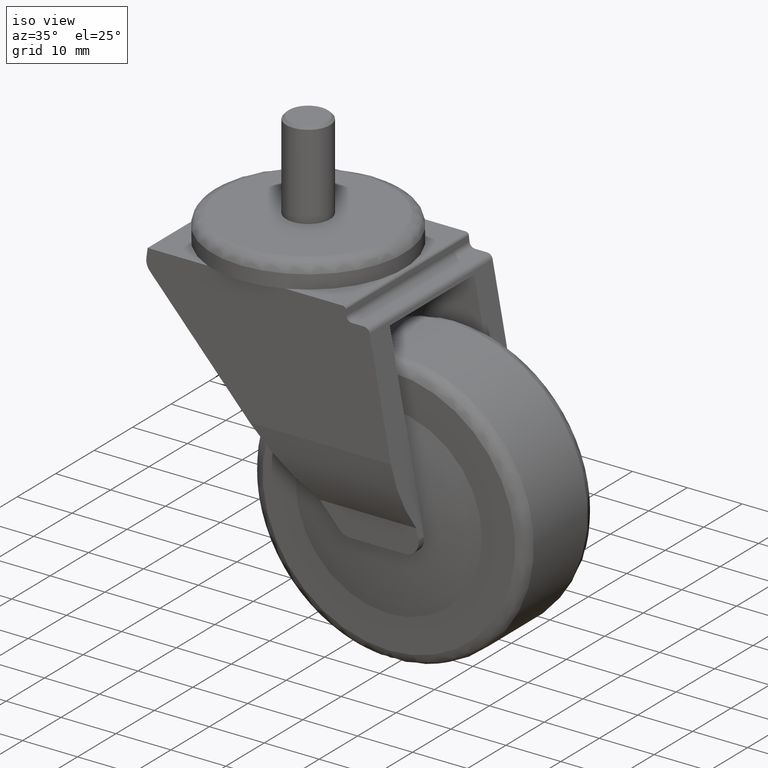
[diagram: clean part render]
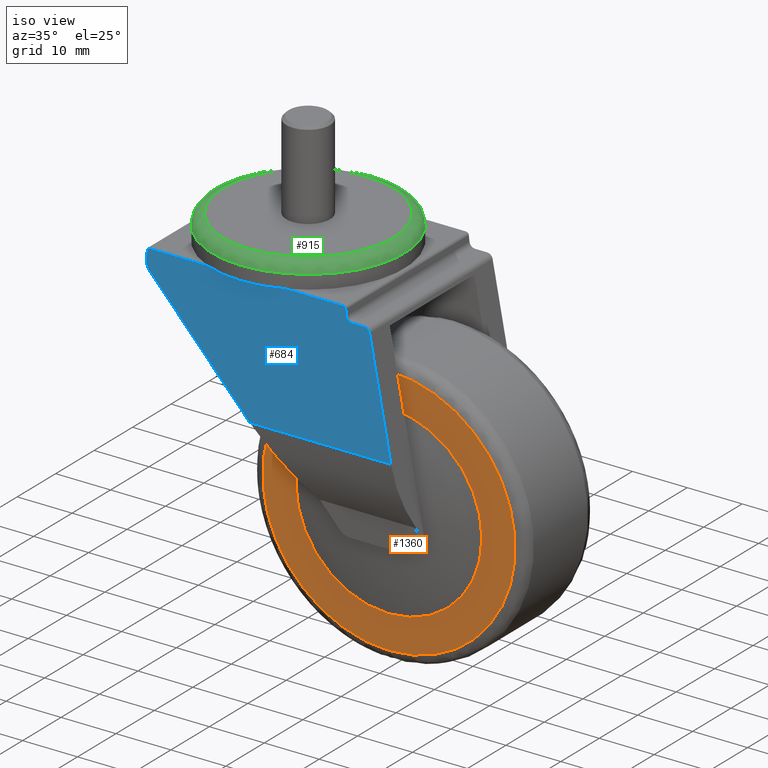
[diagram: same view with three faces highlighted in distinct colors, each labeled with its STEP entity id]
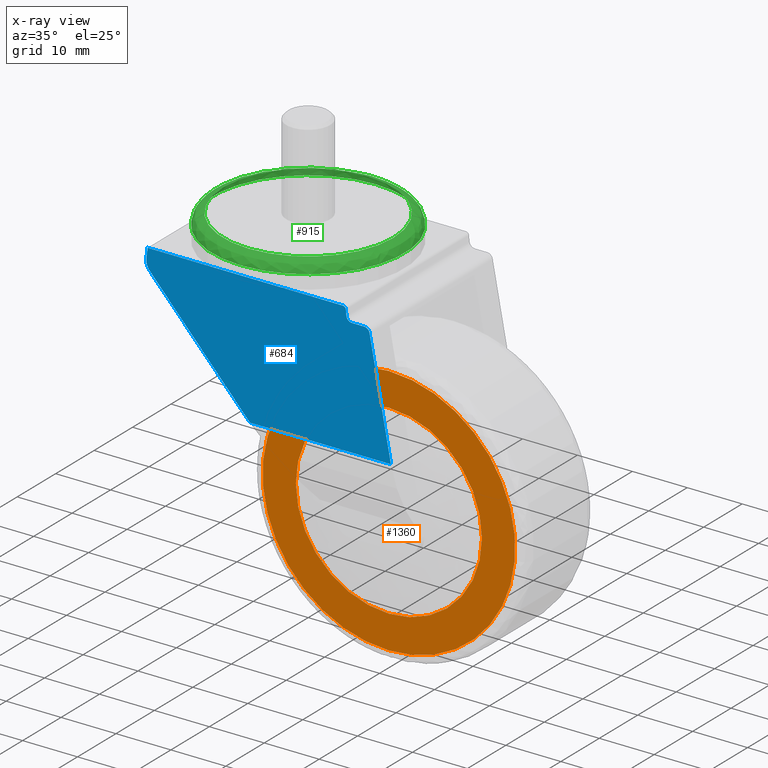
[diagram: x-ray of the same camera — body ghosted, the three highlighted faces saturated]
A machine part, iso view with three faces highlighted in distinct colors.
The next image is the same camera in x-ray (body ghosted, the three faces saturated) — at least one of them is partly hidden behind the body in this view.
Their STEP definitions:

[orange] entity #1360 — the highlighted planar face has unit normal (0, 1, 0).
#1300=CARTESIAN_POINT('',(21.0,-8.999999999963622,-16.999949034416261));
#1301=VERTEX_POINT('',#1300);
#1309=CARTESIAN_POINT('',(21.0,-8.999999999963624,-62.991799420333734));
#1310=VERTEX_POINT('',#1309);
#1311=CARTESIAN_POINT('',(21.0,-8.999999999963622,-39.995874227374998));
#1312=DIRECTION('',(0.0,1.0,-6.123234E-017));
#1313=DIRECTION('',(0.0,6.123234E-017,1.0));
#1314=AXIS2_PLACEMENT_3D('',#1311,#1312,#1313);
#1315=CIRCLE('',#1314,22.995925192958737);
#1316=EDGE_CURVE('',#1301,#1310,#1315,.T.);
#1318=CARTESIAN_POINT('',(21.0,-8.999999999963622,-39.995874227374998));
#1319=DIRECTION('',(0.0,1.0,-6.123234E-017));
#1320=DIRECTION('',(0.0,6.123234E-017,1.0));
#1321=AXIS2_PLACEMENT_3D('',#1318,#1319,#1320);
#1322=CIRCLE('',#1321,22.995925192958737);
#1323=EDGE_CURVE('',#1310,#1301,#1322,.T.);
#1331=CARTESIAN_POINT('',(-24.991850385917473,-8.999999999963620,5.995976158542477));
#1332=DIRECTION('',(0.0,1.0,0.0));
#1333=DIRECTION('',(1.0,0.0,0.0));
#1334=AXIS2_PLACEMENT_3D('',#1331,#1332,#1333);
#1335=PLANE('',#1334);
#1336=ORIENTED_EDGE('',*,*,#1323,.F.);
#1337=ORIENTED_EDGE('',*,*,#1316,.F.);
#1338=EDGE_LOOP('',(#1336,#1337));
#1339=FACE_OUTER_BOUND('',#1338,.T.);
#1340=CARTESIAN_POINT('',(21.0,-8.999999999963622,-23.052448147531777));
#1341=VERTEX_POINT('',#1340);
#1342=CARTESIAN_POINT('',(21.0,-8.999999999963624,-56.939300307218218));
#1343=VERTEX_POINT('',#1342);
#1344=CARTESIAN_POINT('',(21.0,-8.999999999963622,-39.995874227374998));
#1345=DIRECTION('',(0.0,1.0,-6.123234E-017));
#1346=DIRECTION('',(0.0,6.123234E-017,1.0));
#1347=AXIS2_PLACEMENT_3D('',#1344,#1345,#1346);
#1348=CIRCLE('',#1347,16.943426079843221);
#1349=EDGE_CURVE('',#1341,#1343,#1348,.T.);
#1350=ORIENTED_EDGE('',*,*,#1349,.T.);
#1351=CARTESIAN_POINT('',(21.0,-8.999999999963622,-39.995874227374998));
#1352=DIRECTION('',(0.0,1.0,-6.123234E-017));
#1353=DIRECTION('',(0.0,6.123234E-017,1.0));
#1354=AXIS2_PLACEMENT_3D('',#1351,#1352,#1353);
#1355=CIRCLE('',#1354,16.943426079843221);
#1356=EDGE_CURVE('',#1343,#1341,#1355,.T.);
#1357=ORIENTED_EDGE('',*,*,#1356,.T.);
#1358=EDGE_LOOP('',(#1350,#1357));
#1359=FACE_BOUND('',#1358,.T.);
#1360=ADVANCED_FACE('',(#1339,#1359),#1335,.F.);

[blue] entity #684 — the highlighted planar face has unit normal (0, -1, 0).
#93=CARTESIAN_POINT('',(22.375318074993629,-15.999999999936335,-7.726464443858048));
#94=VERTEX_POINT('',#93);
#101=CARTESIAN_POINT('',(26.264550965767153,-15.999999999936337,-28.277068329185749));
#102=VERTEX_POINT('',#101);
#103=CARTESIAN_POINT('',(26.264550965767153,-15.999999999936337,-28.277068329185749));
#104=DIRECTION('',(-0.185950789084049,8.493062E-017,0.982559058804619));
#105=VECTOR('',#104,20.915387936405114);
#106=LINE('',#103,#105);
#107=EDGE_CURVE('',#102,#94,#106,.T.);
#188=CARTESIAN_POINT('',(21.392759818221748,-15.999999999936335,-6.912415897413893));
#189=VERTEX_POINT('',#188);
#196=CARTESIAN_POINT('',(21.392759818221752,-15.999999999936335,-7.912415081144672));
#197=DIRECTION('',(1.540744E-033,-1.0,6.123234E-017));
#198=DIRECTION('',(0.982559058806723,1.138620E-017,0.185950789072931));
#199=AXIS2_PLACEMENT_3D('',#196,#197,#198);
#200=CIRCLE('',#199,0.999999183728617);
#201=EDGE_CURVE('',#94,#189,#200,.T.);
#220=CARTESIAN_POINT('',(19.161870972600809,-15.999999999936335,-6.912415897424352));
#221=VERTEX_POINT('',#220);
#228=CARTESIAN_POINT('',(21.392759818221748,-15.999999999936335,-6.912415897413893));
#229=DIRECTION('',(-1.0,0.0,-5.299875E-012));
#230=VECTOR('',#229,2.230888845620939);
#231=LINE('',#228,#230);
#232=EDGE_CURVE('',#189,#221,#231,.T.);
#252=CARTESIAN_POINT('',(18.167907019151244,-15.999999999936335,-6.022073385073553));
#253=VERTEX_POINT('',#252);
#260=CARTESIAN_POINT('',(19.161870972600813,-15.999999999936335,-5.912422015659103));
#261=DIRECTION('',(0.0,1.0,-6.123234E-017));
#262=DIRECTION('',(-0.993970034789751,-6.714251E-018,-0.109652040291374));
#263=AXIS2_PLACEMENT_3D('',#260,#261,#262);
#264=CIRCLE('',#263,0.999993881765253);
#265=EDGE_CURVE('',#221,#253,#264,.T.);
#284=CARTESIAN_POINT('',(18.049105926018456,-15.999999999936335,-4.945169331482474));
#285=VERTEX_POINT('',#284);
#292=CARTESIAN_POINT('',(18.167907019151244,-15.999999999936335,-6.022073385073553));
#293=DIRECTION('',(-0.109652040291323,0.0,0.993970034789757));
#294=VECTOR('',#293,1.083437141864005);
#295=LINE('',#292,#294);
#296=EDGE_CURVE('',#253,#285,#295,.T.);
#316=CARTESIAN_POINT('',(17.499995637430402,-15.999999999936335,-4.499994252981195));
#317=VERTEX_POINT('',#316);
#324=CARTESIAN_POINT('',(17.499995637430402,-15.999999999936335,-5.061237439857449));
#325=DIRECTION('',(0.0,-1.0,6.123234E-017));
#326=DIRECTION('',(1.0,0.0,0.0));
#327=AXIS2_PLACEMENT_3D('',#324,#325,#326);
#328=CIRCLE('',#327,0.561243186876141);
#329=EDGE_CURVE('',#285,#317,#328,.T.);
#348=CARTESIAN_POINT('',(-18.031204514500132,-15.999999999936335,-4.499994252981195));
#349=VERTEX_POINT('',#348);
#356=CARTESIAN_POINT('',(17.499995637430402,-15.999999999936335,-4.499994252981195));
#357=DIRECTION('',(-1.0,0.0,0.0));
#358=VECTOR('',#357,35.531200151930534);
#359=LINE('',#356,#358);
#360=EDGE_CURVE('',#317,#349,#359,.T.);
#379=CARTESIAN_POINT('',(-18.267747011785104,-15.999999999936335,-6.174286333161944));
#380=VERTEX_POINT('',#379);
#387=CARTESIAN_POINT('',(-18.031204514500132,-15.999999999936335,-4.499994252981195));
#388=DIRECTION('',(-0.139889922562157,0.0,-0.990167061442438));
#389=VECTOR('',#388,1.690918780656774);
#390=LINE('',#387,#389);
#391=EDGE_CURVE('',#349,#380,#390,.T.);
#411=CARTESIAN_POINT('',(-17.643730551919361,-15.999999999936335,-8.203984357693114));
#412=VERTEX_POINT('',#411);
#419=CARTESIAN_POINT('',(-15.792331337932410,-15.999999999936335,-6.524010859871621));
#420=DIRECTION('',(0.0,-1.0,6.123234E-017));
#421=DIRECTION('',(-0.740560277869410,-4.114752E-017,-0.671989936563027));
#422=AXIS2_PLACEMENT_3D('',#419,#420,#421);
#423=CIRCLE('',#422,2.499998000586017);
#424=EDGE_CURVE('',#380,#412,#423,.T.);
#477=CARTESIAN_POINT('',(0.570736018497003,-15.999999999936337,-28.277068329185632));
#478=VERTEX_POINT('',#477);
#486=CARTESIAN_POINT('',(-17.643730551919361,-15.999999999936337,-8.203984357693116));
#487=DIRECTION('',(0.671989936563111,0.0,-0.740560277869335));
#488=VECTOR('',#487,27.105266878807981);
#489=LINE('',#486,#488);
#490=EDGE_CURVE('',#412,#478,#489,.T.);
#661=CARTESIAN_POINT('',(-23.001163089726106,-15.999999999936339,-48.376204442489779));
#662=DIRECTION('',(0.0,-1.0,0.0));
#663=DIRECTION('',(1.0,0.0,0.0));
#664=AXIS2_PLACEMENT_3D('',#661,#662,#663);
#665=PLANE('',#664);
#666=ORIENTED_EDGE('',*,*,#201,.T.);
#667=ORIENTED_EDGE('',*,*,#232,.T.);
#668=ORIENTED_EDGE('',*,*,#265,.T.);
#669=ORIENTED_EDGE('',*,*,#296,.T.);
#670=ORIENTED_EDGE('',*,*,#329,.T.);
#671=ORIENTED_EDGE('',*,*,#360,.T.);
#672=ORIENTED_EDGE('',*,*,#391,.T.);
#673=ORIENTED_EDGE('',*,*,#424,.T.);
#674=ORIENTED_EDGE('',*,*,#490,.T.);
#675=CARTESIAN_POINT('',(26.264550965767157,-15.999999999936337,-28.277068329185681));
#676=DIRECTION('',(-1.0,0.0,0.0));
#677=VECTOR('',#676,25.693814947270155);
#678=LINE('',#675,#677);
#679=EDGE_CURVE('',#102,#478,#678,.T.);
#680=ORIENTED_EDGE('',*,*,#679,.F.);
#681=ORIENTED_EDGE('',*,*,#107,.T.);
#682=EDGE_LOOP('',(#666,#667,#668,#669,#670,#671,#672,#673,#674,#680,#681));
#683=FACE_OUTER_BOUND('',#682,.T.);
#684=ADVANCED_FACE('',(#683),#665,.T.);

[green] entity #915 — the highlighted face is a freeform B-spline surface patch.
#822=CARTESIAN_POINT('',(0.0,17.499995637431496,-1.999999999992991));
#823=VERTEX_POINT('',#822);
#830=CARTESIAN_POINT('',(0.0,-17.499995637431496,-1.999999999992990));
#831=VERTEX_POINT('',#830);
#832=CARTESIAN_POINT('',(0.0,-1.224647E-016,-1.999999999992991));
#833=DIRECTION('',(0.0,4.854407E-017,1.0));
#834=DIRECTION('',(0.0,1.0,-4.854407E-017));
#835=AXIS2_PLACEMENT_3D('',#832,#833,#834);
#836=CIRCLE('',#835,17.499995637431496);
#837=EDGE_CURVE('',#831,#823,#836,.T.);
#839=CARTESIAN_POINT('',(0.0,-1.224647E-016,-1.999999999992991));
#840=DIRECTION('',(0.0,4.854407E-017,1.0));
#841=DIRECTION('',(0.0,1.0,-4.854407E-017));
#842=AXIS2_PLACEMENT_3D('',#839,#840,#841);
#843=CIRCLE('',#842,17.499995637431496);
#844=EDGE_CURVE('',#823,#831,#843,.T.);
#850=CARTESIAN_POINT('',(0.0,17.499995637431496,-1.999999999992991));
#851=CARTESIAN_POINT('',(-17.499995637431496,17.499995637431496,-1.999999999992991));
#852=CARTESIAN_POINT('',(-17.499995637431496,-1.224647E-016,-1.999999999992991));
#853=CARTESIAN_POINT('',(-17.499995637431496,-17.499995637431496,-1.999999999992990));
#854=CARTESIAN_POINT('',(0.0,-17.499995637431496,-1.999999999992990));
#855=CARTESIAN_POINT('',(17.499995637431496,-17.499995637431496,-1.999999999992990));
#856=CARTESIAN_POINT('',(17.499995637431496,-1.224647E-016,-1.999999999992991));
#857=CARTESIAN_POINT('',(17.499995637431496,17.499995637431496,-1.999999999992991));
#858=CARTESIAN_POINT('',(0.0,17.499995637431496,-1.999999999992991));
#859=CARTESIAN_POINT('',(0.0,17.499995637431496,-8.881784E-016));
#860=CARTESIAN_POINT('',(-17.499995637431496,17.499995637431496,-8.881784E-016));
#861=CARTESIAN_POINT('',(-17.499995637431496,0.0,0.0));
#862=CARTESIAN_POINT('',(-17.499995637431496,-17.499995637431496,8.881784E-016));
#863=CARTESIAN_POINT('',(0.0,-17.499995637431496,8.881784E-016));
#864=CARTESIAN_POINT('',(17.499995637431496,-17.499995637431496,8.881784E-016));
#865=CARTESIAN_POINT('',(17.499995637431496,0.0,0.0));
#866=CARTESIAN_POINT('',(17.499995637431496,17.499995637431496,-8.881784E-016));
#867=CARTESIAN_POINT('',(0.0,17.499995637431496,-8.881784E-016));
#868=CARTESIAN_POINT('',(0.0,15.499995637438506,-8.881784E-016));
#869=CARTESIAN_POINT('',(-15.499995637438506,15.499995637438506,-8.881784E-016));
#870=CARTESIAN_POINT('',(-15.499995637438506,0.0,0.0));
#871=CARTESIAN_POINT('',(-15.499995637438506,-15.499995637438506,8.881784E-016));
#872=CARTESIAN_POINT('',(0.0,-15.499995637438506,8.881784E-016));
#873=CARTESIAN_POINT('',(15.499995637438506,-15.499995637438506,8.881784E-016));
#874=CARTESIAN_POINT('',(15.499995637438506,0.0,0.0));
#875=CARTESIAN_POINT('',(15.499995637438506,15.499995637438506,-8.881784E-016));
#876=CARTESIAN_POINT('',(0.0,15.499995637438506,-8.881784E-016));
#884=(BOUNDED_SURFACE()B_SPLINE_SURFACE(2,2,((#850,#859,#868),(#851,#860,#869),(#852,#861,#870),(#853,#862,#871),(#854,#863,#872),(#855,#864,#873),(#856,#865,#874),(#857,#866,#875),(#858,#867,#876)),.UNSPECIFIED.,.T.,.F.,.U.)B_SPLINE_SURFACE_WITH_KNOTS((3,2,2,2,3),(3,3),(0.0,0.250000000000000,0.500000000000000,0.750000000000000,1.0),(0.0,1.0),.UNSPECIFIED.)GEOMETRIC_REPRESENTATION_ITEM()RATIONAL_B_SPLINE_SURFACE(((1.0,0.707106781186548,1.0),(0.707106781186548,0.500000000000000,0.707106781186548),(1.0,0.707106781186548,1.0),(0.707106781186548,0.500000000000000,0.707106781186548),(1.0,0.707106781186548,1.0),(0.707106781186548,0.500000000000000,0.707106781186548),(1.0,0.707106781186548,1.0),(0.707106781186548,0.500000000000000,0.707106781186548),(1.0,0.707106781186548,1.0)))REPRESENTATION_ITEM('')SURFACE());
#885=ORIENTED_EDGE('',*,*,#844,.T.);
#886=ORIENTED_EDGE('',*,*,#837,.T.);
#887=CARTESIAN_POINT('',(0.0,15.499995637438506,-9.491010E-016));
#888=VERTEX_POINT('',#887);
#889=CARTESIAN_POINT('',(0.0,15.499995637438506,-1.999999999992991));
#890=DIRECTION('',(1.0,0.0,0.0));
#891=DIRECTION('',(0.0,1.0,4.978996E-017));
#892=AXIS2_PLACEMENT_3D('',#889,#890,#891);
#893=CIRCLE('',#892,1.999999999992991);
#894=EDGE_CURVE('',#823,#888,#893,.T.);
#895=ORIENTED_EDGE('',*,*,#894,.T.);
#896=CARTESIAN_POINT('',(0.0,-15.499995637438506,9.491010E-016));
#897=VERTEX_POINT('',#896);
#898=CARTESIAN_POINT('',(0.0,0.0,0.0));
#899=DIRECTION('',(0.0,6.123234E-017,1.0));
#900=DIRECTION('',(0.0,1.0,-6.123234E-017));
#901=AXIS2_PLACEMENT_3D('',#898,#899,#900);
#902=CIRCLE('',#901,15.499995637438506);
#903=EDGE_CURVE('',#897,#888,#902,.T.);
#904=ORIENTED_EDGE('',*,*,#903,.F.);
#905=CARTESIAN_POINT('',(0.0,0.0,0.0));
#906=DIRECTION('',(0.0,6.123234E-017,1.0));
#907=DIRECTION('',(0.0,1.0,-6.123234E-017));
#908=AXIS2_PLACEMENT_3D('',#905,#906,#907);
#909=CIRCLE('',#908,15.499995637438506);
#910=EDGE_CURVE('',#888,#897,#909,.T.);
#911=ORIENTED_EDGE('',*,*,#910,.F.);
#912=ORIENTED_EDGE('',*,*,#894,.F.);
#913=EDGE_LOOP('',(#885,#886,#895,#904,#911,#912));
#914=FACE_OUTER_BOUND('',#913,.T.);
#915=ADVANCED_FACE('',(#914),#884,.T.);